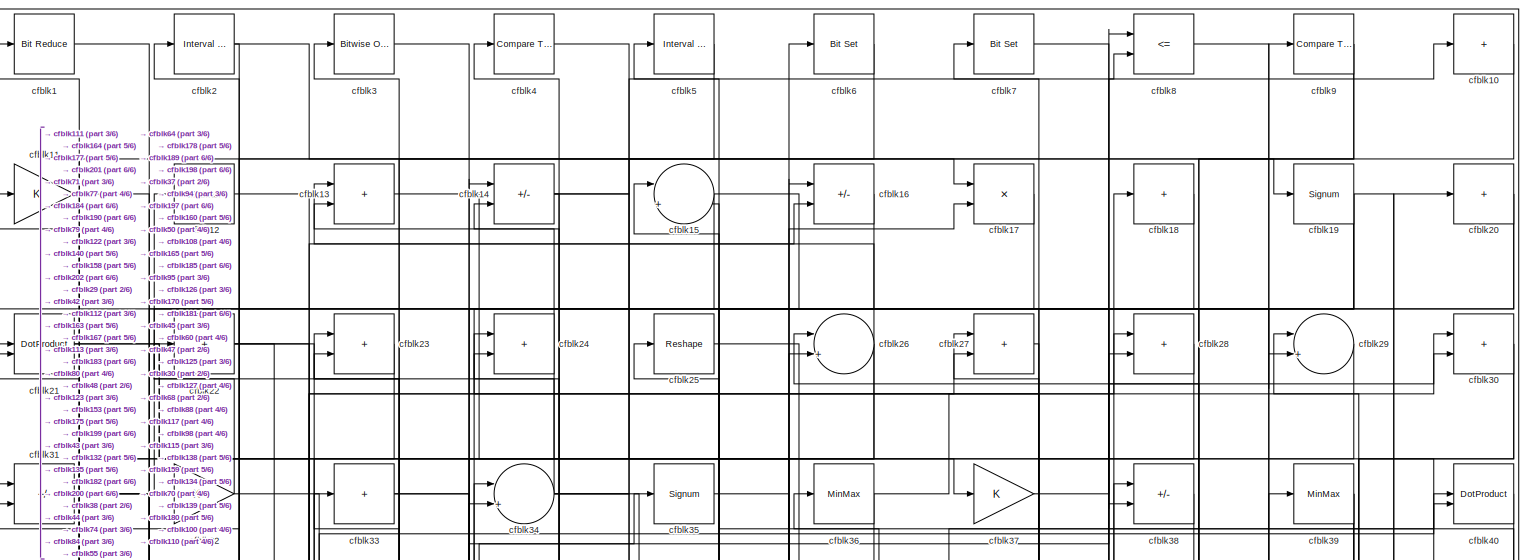
[diagram: root canvas - part 1/6, full width, top band]
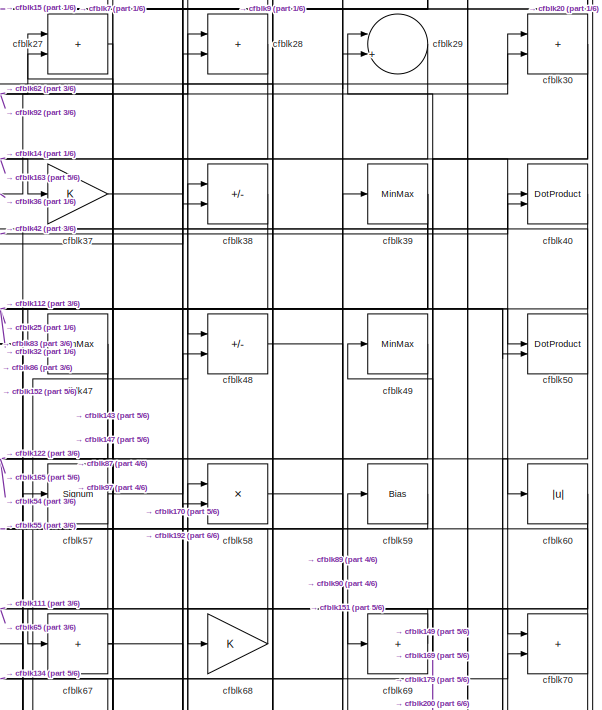
[diagram: root canvas - part 2/6, top right region]
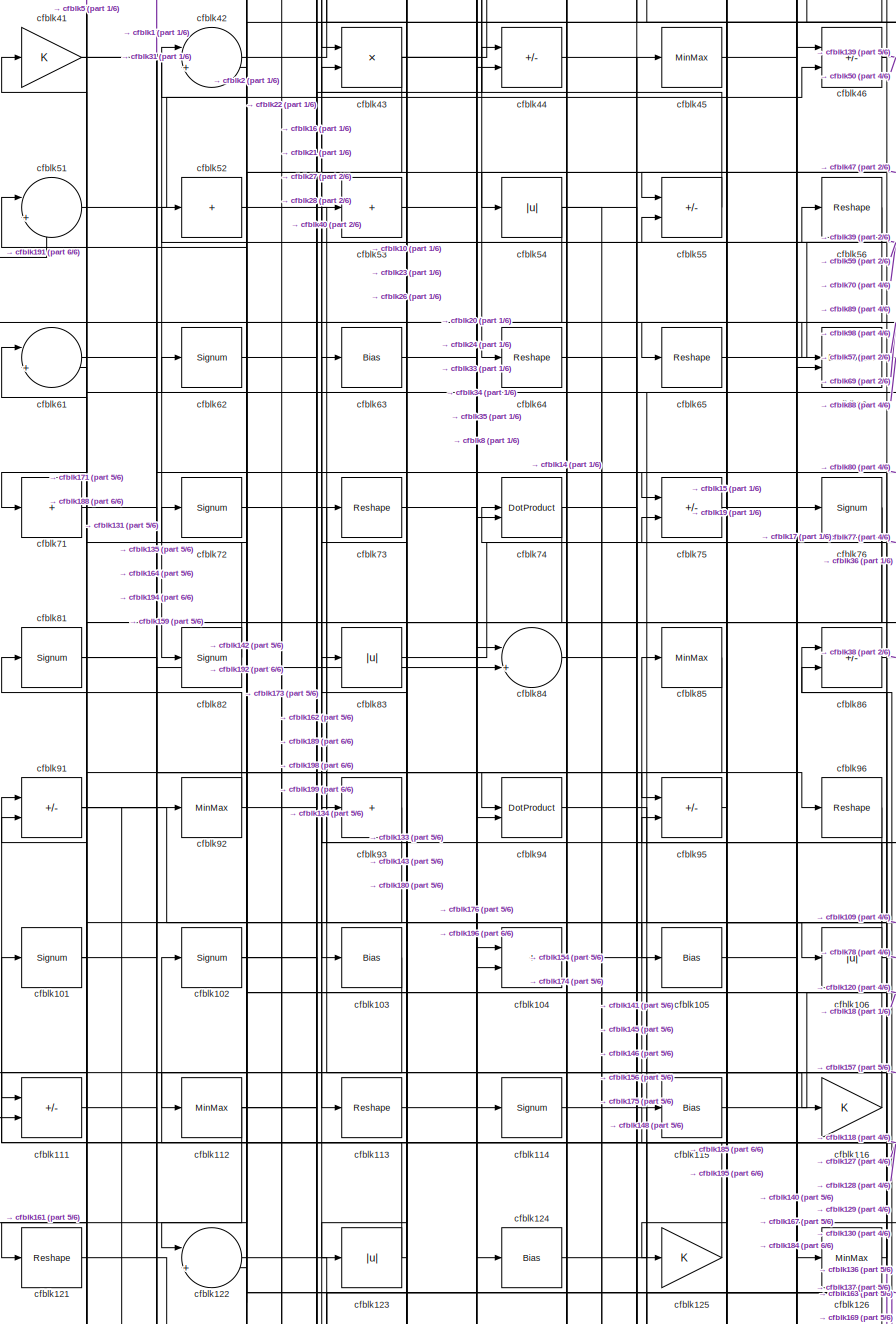
[diagram: root canvas - part 3/6, middle left region]
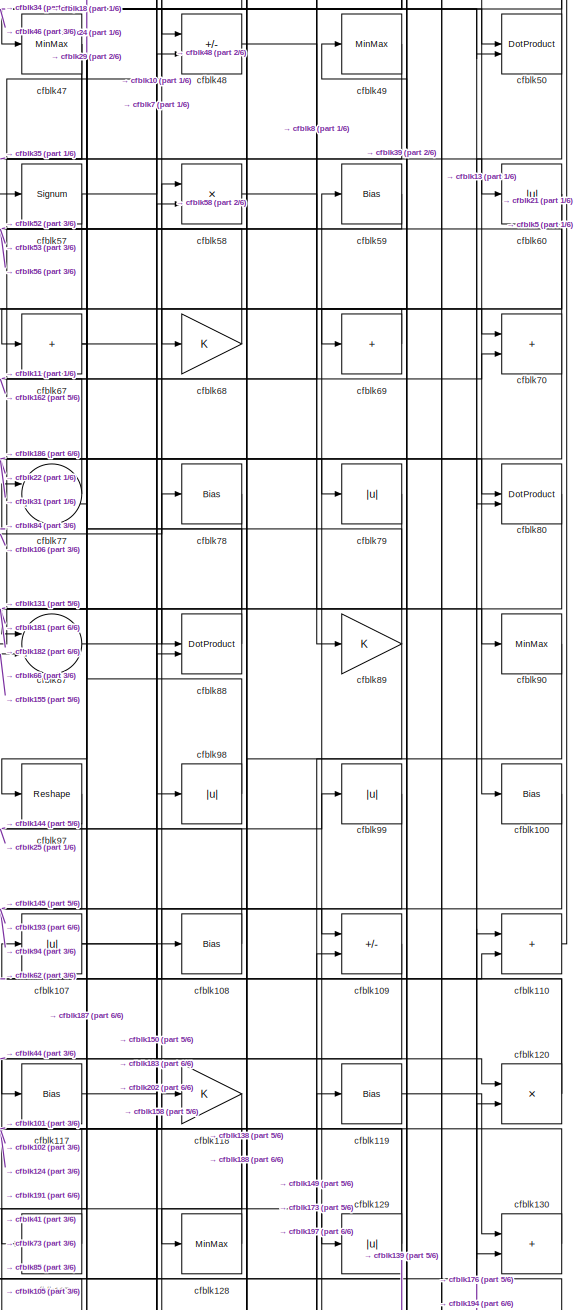
[diagram: root canvas - part 4/6, middle right region]
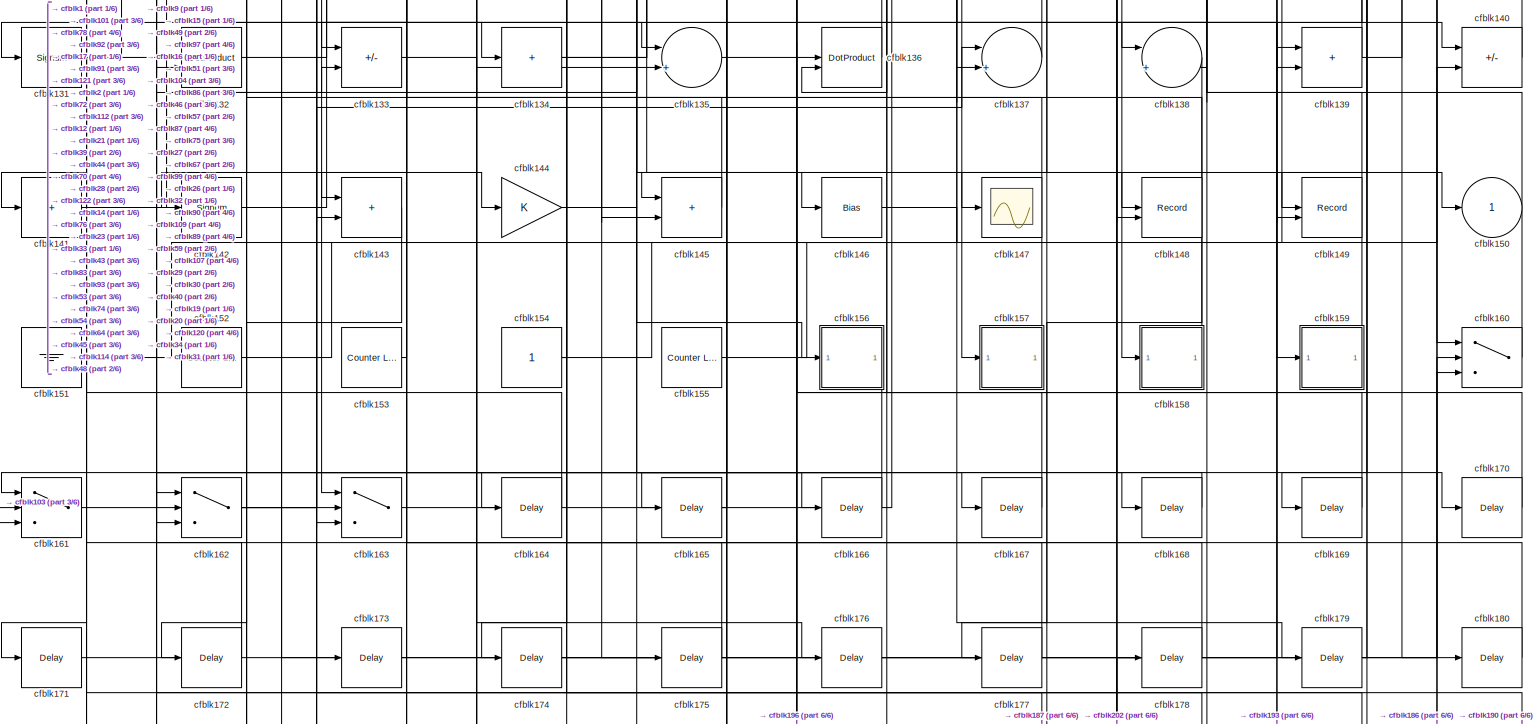
[diagram: root canvas - part 5/6, full width, bottom band]
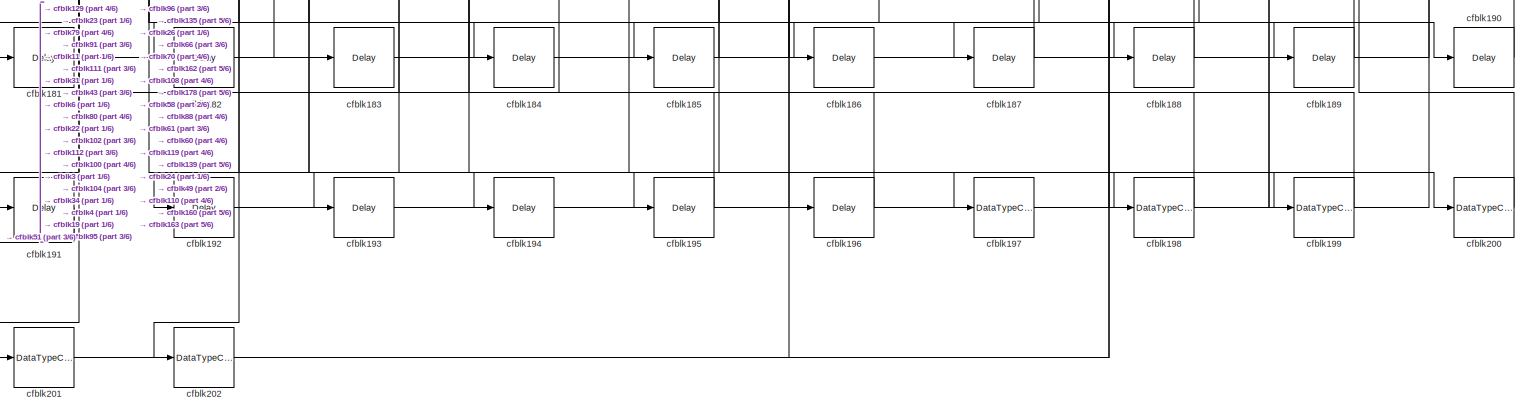
[diagram: root canvas - part 6/6, full width, bottom band]
MODEL slx_9de2fba7d742
KIND model
CONFIG AbsTol = auto
CONFIG EnableMultiTasking = off
CONFIG FixedStep = auto
CONFIG MaxStep = auto
CONFIG MinStep = auto
CONFIG RelTol = 1e-3
CONFIG SampleTimeConstraint = Unconstrained
CONFIG SolverName = VariableStepAuto
CONFIG StartTime = 0.0
CONFIG StopTime = 10.0
BLOCK [Reference] cfblk1  REF=hdlsllib/Logic and Bit
Operations/Bit Reduce
  SourceBlock = hdlsllib/Logic and Bit\nOperations/Bit Reduce
  SourceType = Bit Reduce
BLOCK [Sum] cfblk10
  IconShape = rectangular
  Inputs = +
BLOCK [Bias] cfblk100
  Bias = 0.0
  SaturateOnIntegerOverflow = off
BLOCK [Signum] cfblk101
BLOCK [Signum] cfblk102
BLOCK [Bias] cfblk103
  Bias = 0.0
  SaturateOnIntegerOverflow = off
BLOCK [Sum] cfblk104
  IconShape = rectangular
BLOCK [Bias] cfblk105
  Bias = 0.0
  SaturateOnIntegerOverflow = off
BLOCK [Abs] cfblk106
  SaturateOnIntegerOverflow = off
BLOCK [Abs] cfblk107
  SaturateOnIntegerOverflow = off
BLOCK [Bias] cfblk108
  Bias = 0.0
  SaturateOnIntegerOverflow = off
BLOCK [Sum] cfblk109
  IconShape = rectangular
  Inputs = +-
BLOCK [Gain] cfblk11
BLOCK [Sum] cfblk110
  IconShape = rectangular
BLOCK [Sum] cfblk111
  IconShape = rectangular
  Inputs = +-
BLOCK [MinMax] cfblk112
BLOCK [Reshape] cfblk113
BLOCK [Signum] cfblk114
BLOCK [Bias] cfblk115
  Bias = 0.0
  SaturateOnIntegerOverflow = off
BLOCK [Gain] cfblk116
BLOCK [Bias] cfblk117
  Bias = 0.0
  SaturateOnIntegerOverflow = off
BLOCK [Gain] cfblk118
BLOCK [Bias] cfblk119
  Bias = 0.0
  SaturateOnIntegerOverflow = off
BLOCK [MinMax] cfblk12
BLOCK [Product] cfblk120
  Inputs = */
  RndMeth = Zero
  SaturateOnIntegerOverflow = on
BLOCK [Reshape] cfblk121
BLOCK [Sum] cfblk122
  Inputs = |++
BLOCK [Abs] cfblk123
  SaturateOnIntegerOverflow = off
BLOCK [Bias] cfblk124
  Bias = 0.0
  SaturateOnIntegerOverflow = off
BLOCK [Gain] cfblk125
BLOCK [MinMax] cfblk126
BLOCK [Sum] cfblk127
  IconShape = rectangular
  Inputs = +
BLOCK [MinMax] cfblk128
BLOCK [Abs] cfblk129
  SaturateOnIntegerOverflow = off
BLOCK [Sum] cfblk13
  IconShape = rectangular
BLOCK [Sum] cfblk130
  IconShape = rectangular
BLOCK [Signum] cfblk131
BLOCK [DotProduct] cfblk132
  OutDataTypeStr = Inherit: Inherit via internal rule
BLOCK [Sum] cfblk133
  IconShape = rectangular
  Inputs = +-
BLOCK [Sum] cfblk134
  IconShape = rectangular
  Inputs = +
BLOCK [Sum] cfblk135
  Inputs = |++
BLOCK [DotProduct] cfblk136
  OutDataTypeStr = Inherit: Inherit via internal rule
BLOCK [Sum] cfblk137
  Inputs = |++
BLOCK [Sum] cfblk138
  Inputs = |++
BLOCK [Sum] cfblk139
  IconShape = rectangular
BLOCK [Sum] cfblk14
  IconShape = rectangular
  Inputs = +-
BLOCK [Sum] cfblk140
  IconShape = rectangular
  Inputs = +-
BLOCK [Sum] cfblk141
  IconShape = rectangular
  Inputs = +
BLOCK [Signum] cfblk142
BLOCK [Sum] cfblk143
  IconShape = rectangular
BLOCK [Gain] cfblk144
BLOCK [Sum] cfblk145
  IconShape = rectangular
BLOCK [Bias] cfblk146
  Bias = 0.0
  SaturateOnIntegerOverflow = off
BLOCK [Scope] cfblk147
  Floating = off
  NumInputPorts = 1
  ScopeSpecificationString = Simulink.scopes.TimeScopeBlockCfg('CurrentConfiguration', extmgr.ConfigurationSet(extmgr.Configuration('Core','General UI',true),extmgr.Configuration('Core','Source UI',true),extmgr.Configuration('Sources','WiredSimulink',true,'DataLoggingVariableName','ScopeData2','DataLoggingSaveFormat','Array','DataLoggingLimitDataPoints',true,'DataLoggingDecimation','1'),extmgr.Configuration('Visuals','Time Do...<+868ch>
BLOCK [Record] cfblk148
  CompatibilityTag = XY
  FileSettingsInternal = {"entries":[{"content":{"excelSettings":{"content":{},"type":"Streamout.ExcelSettings"}},"type":"Streamout.FileSettingStorage","uuid":""}],"packageUris":["http:\/\/schema.mathworks.com\/mf0\/streamout_blocks\/R2020a"],"version":"1.0"}
  Layout = [1 1]
  SignalsInternal = {"entries":[{"content":{"signals":[{"content":{"blockPath":[],"dimensions":[1],"domain":"","lineColor":"#a2142f","plots":[1],"port":1,"signalID":1157,"signalName":"XY Graph:1"},"type":"RecordBlkView.Signal","uuid":""},{"content":{"blockPath":[],"dimensions":[1],"domain":"","lineColor":"#139fff","plots":[1],"port":2,"signalID":1160,"signalName":"XY Graph:2"},"type":"RecordBlkView.Signal","uuid":""}...<+146ch>
  VisualizationBindings = {"xyplotplugin":{"info":[{"series":[{"bindingParametersList":[{"parameter":"X-Axis","signalID":1157,"signalName":"XY Graph:1"},{"parameter":"Y-Axis","signalID":1160,"signalName":"XY Graph:2"}],"seriesID":53532}],"subplotID":1}]}}
  st = -1
BLOCK [Record] cfblk149
  CompatibilityTag = XY
  FileSettingsInternal = {"entries":[{"content":{"excelSettings":{"content":{},"type":"Streamout.ExcelSettings"}},"type":"Streamout.FileSettingStorage","uuid":""}],"packageUris":["http:\/\/schema.mathworks.com\/mf0\/streamout_blocks\/R2020a"],"version":"1.0"}
  Layout = [1 1]
  SignalsInternal = {"entries":[{"content":{"signals":[{"content":{"blockPath":[],"dimensions":[1],"domain":"","lineColor":"#a2142f","plots":[1],"port":1,"signalID":1165,"signalName":"XY Graph:1"},"type":"RecordBlkView.Signal","uuid":""},{"content":{"blockPath":[],"dimensions":[1],"domain":"","lineColor":"#139fff","plots":[1],"port":2,"signalID":1168,"signalName":"XY Graph:2"},"type":"RecordBlkView.Signal","uuid":""}...<+146ch>
  VisualizationBindings = {"xyplotplugin":{"info":[{"series":[{"bindingParametersList":[{"parameter":"X-Axis","signalID":1165,"signalName":"XY Graph:1"},{"parameter":"Y-Axis","signalID":1168,"signalName":"XY Graph:2"}],"seriesID":10874}],"subplotID":1}]}}
  st = -1
BLOCK [Sum] cfblk15
  Inputs = |++
BLOCK [Outport] cfblk150
  VectorParamsAs1DForOutWhenUnconnected = off
BLOCK [Ground] cfblk151
BLOCK [Reference] cfblk152  REF=hdlsllib/Sources/Counter
Limited
  SourceBlock = hdlsllib/Sources/Counter\nLimited
  SourceType = Counter Limited
BLOCK [Reference] cfblk153  REF=hdlsllib/Sources/Counter
Limited
  SourceBlock = hdlsllib/Sources/Counter\nLimited
  SourceType = Counter Limited
BLOCK [Constant] cfblk154
  SampleTime = -1
BLOCK [Reference] cfblk155  REF=hdlsllib/Sources/Counter
Limited
  SourceBlock = hdlsllib/Sources/Counter\nLimited
  SourceType = Counter Limited
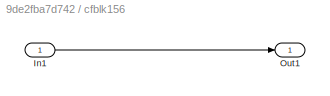
BLOCK [SubSystem] cfblk156
  LibrarySourceBlock = hdlsllib/Ports &\nSubsystems/Subsystem
BLOCK [Inport] cfblk156/In1
BLOCK [Outport] cfblk156/Out1
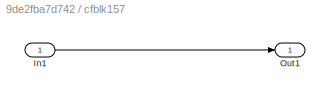
BLOCK [SubSystem] cfblk157
  LibrarySourceBlock = hdlsllib/Ports &\nSubsystems/Subsystem
BLOCK [Inport] cfblk157/In1
BLOCK [Outport] cfblk157/Out1
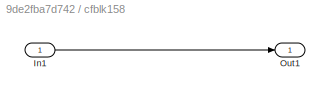
BLOCK [SubSystem] cfblk158
  LibrarySourceBlock = hdlsllib/Ports &\nSubsystems/Subsystem
BLOCK [Inport] cfblk158/In1
BLOCK [Outport] cfblk158/Out1
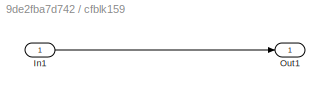
BLOCK [SubSystem] cfblk159
  LibrarySourceBlock = hdlsllib/Ports &\nSubsystems/Subsystem
BLOCK [Inport] cfblk159/In1
BLOCK [Outport] cfblk159/Out1
BLOCK [Sum] cfblk16
  IconShape = rectangular
  Inputs = +-
BLOCK [Switch] cfblk160
  InputSameDT = off
  SaturateOnIntegerOverflow = off
BLOCK [Switch] cfblk161
  InputSameDT = off
  SaturateOnIntegerOverflow = off
BLOCK [Switch] cfblk162
  InputSameDT = off
  SaturateOnIntegerOverflow = off
BLOCK [Switch] cfblk163
  InputSameDT = off
  SaturateOnIntegerOverflow = off
BLOCK [Delay] cfblk164
  InputPortMap = u0
  SampleTime = 1
BLOCK [Delay] cfblk165
  InputPortMap = u0
  SampleTime = 1
BLOCK [Delay] cfblk166
  InputPortMap = u0
  SampleTime = 1
BLOCK [Delay] cfblk167
  InputPortMap = u0
  SampleTime = 1
BLOCK [Delay] cfblk168
  InputPortMap = u0
  SampleTime = 1
BLOCK [Delay] cfblk169
  InputPortMap = u0
  SampleTime = 1
BLOCK [Product] cfblk17
  Inputs = */
  RndMeth = Zero
  SaturateOnIntegerOverflow = on
BLOCK [Delay] cfblk170
  InputPortMap = u0
  SampleTime = 1
BLOCK [Delay] cfblk171
  InputPortMap = u0
  SampleTime = 1
BLOCK [Delay] cfblk172
  InputPortMap = u0
  SampleTime = 1
BLOCK [Delay] cfblk173
  InputPortMap = u0
  SampleTime = 1
BLOCK [Delay] cfblk174
  InputPortMap = u0
  SampleTime = 1
BLOCK [Delay] cfblk175
  InputPortMap = u0
  SampleTime = 1
BLOCK [Delay] cfblk176
  InputPortMap = u0
  SampleTime = 1
BLOCK [Delay] cfblk177
  InputPortMap = u0
  SampleTime = 1
BLOCK [Delay] cfblk178
  InputPortMap = u0
  SampleTime = 1
BLOCK [Delay] cfblk179
  InputPortMap = u0
  SampleTime = 1
BLOCK [Sum] cfblk18
  IconShape = rectangular
  Inputs = +
BLOCK [Delay] cfblk180
  InputPortMap = u0
  SampleTime = 1
BLOCK [Delay] cfblk181
  InputPortMap = u0
  SampleTime = 1
BLOCK [Delay] cfblk182
  InputPortMap = u0
  SampleTime = 1
BLOCK [Delay] cfblk183
  InputPortMap = u0
  SampleTime = 1
BLOCK [Delay] cfblk184
  InputPortMap = u0
  SampleTime = 1
BLOCK [Delay] cfblk185
  InputPortMap = u0
  SampleTime = 1
BLOCK [Delay] cfblk186
  InputPortMap = u0
  SampleTime = 1
BLOCK [Delay] cfblk187
  InputPortMap = u0
  SampleTime = 1
BLOCK [Delay] cfblk188
  InputPortMap = u0
  SampleTime = 1
BLOCK [Delay] cfblk189
  InputPortMap = u0
  SampleTime = 1
BLOCK [Signum] cfblk19
BLOCK [Delay] cfblk190
  InputPortMap = u0
  SampleTime = 1
BLOCK [Delay] cfblk191
  InputPortMap = u0
  SampleTime = 1
BLOCK [Delay] cfblk192
  InputPortMap = u0
  SampleTime = 1
BLOCK [Delay] cfblk193
  InputPortMap = u0
  SampleTime = 1
BLOCK [Delay] cfblk194
  InputPortMap = u0
  SampleTime = 1
BLOCK [Delay] cfblk195
  InputPortMap = u0
  SampleTime = 1
BLOCK [Delay] cfblk196
  InputPortMap = u0
  SampleTime = 1
BLOCK [DataTypeConversion] cfblk197
  OutDataTypeStr = uint8
  RndMeth = Floor
  SaturateOnIntegerOverflow = off
BLOCK [DataTypeConversion] cfblk198
  OutDataTypeStr = uint8
  RndMeth = Floor
  SaturateOnIntegerOverflow = off
BLOCK [DataTypeConversion] cfblk199
  OutDataTypeStr = boolean
  RndMeth = Floor
  SaturateOnIntegerOverflow = off
BLOCK [Reference] cfblk2  REF=hdlsllib/Logic and Bit
Operations/Interval Test
  SourceBlock = hdlsllib/Logic and Bit\nOperations/Interval Test
  SourceType = Interval Test
BLOCK [Sum] cfblk20
  IconShape = rectangular
  Inputs = +
BLOCK [DataTypeConversion] cfblk200
  OutDataTypeStr = uint8
  RndMeth = Floor
  SaturateOnIntegerOverflow = off
BLOCK [DataTypeConversion] cfblk201
  OutDataTypeStr = boolean
  RndMeth = Floor
  SaturateOnIntegerOverflow = off
BLOCK [DataTypeConversion] cfblk202
  RndMeth = Floor
  SaturateOnIntegerOverflow = off
BLOCK [DotProduct] cfblk21
  OutDataTypeStr = Inherit: Inherit via internal rule
BLOCK [Sum] cfblk22
  IconShape = rectangular
  Inputs = +
BLOCK [Sum] cfblk23
  IconShape = rectangular
BLOCK [Sum] cfblk24
  IconShape = rectangular
BLOCK [Reshape] cfblk25
BLOCK [Sum] cfblk26
  Inputs = |++
BLOCK [Sum] cfblk27
  IconShape = rectangular
BLOCK [Sum] cfblk28
  IconShape = rectangular
BLOCK [Sum] cfblk29
  Inputs = |++
BLOCK [Reference] cfblk3  REF=simulink/Logic and Bit
Operations/Bitwise
Operator
  LibrarySourceBlock = hdlsllib/Logic and Bit\nOperations/Bitwise\nOperator
  SourceBlock = simulink/Logic and Bit\nOperations/Bitwise\nOperator
  SourceType = Bitwise Operator
BLOCK [Sum] cfblk30
  IconShape = rectangular
BLOCK [Sum] cfblk31
  IconShape = rectangular
  Inputs = +-
BLOCK [Gain] cfblk32
BLOCK [Sum] cfblk33
  IconShape = rectangular
  Inputs = +
BLOCK [Sum] cfblk34
  Inputs = |++
BLOCK [Signum] cfblk35
BLOCK [MinMax] cfblk36
BLOCK [Gain] cfblk37
BLOCK [Sum] cfblk38
  IconShape = rectangular
  Inputs = +-
BLOCK [MinMax] cfblk39
BLOCK [Reference] cfblk4  REF=hdlsllib/Logic and Bit
Operations/Compare
To Zero
  SourceBlock = hdlsllib/Logic and Bit\nOperations/Compare\nTo Zero
  SourceType = Compare To Zero
BLOCK [DotProduct] cfblk40
  OutDataTypeStr = Inherit: Inherit via internal rule
BLOCK [Gain] cfblk41
BLOCK [Sum] cfblk42
  Inputs = |++
BLOCK [Product] cfblk43
  Inputs = */
  RndMeth = Zero
  SaturateOnIntegerOverflow = on
BLOCK [Sum] cfblk44
  IconShape = rectangular
  Inputs = +-
BLOCK [MinMax] cfblk45
BLOCK [Sum] cfblk46
  IconShape = rectangular
  Inputs = +-
BLOCK [MinMax] cfblk47
BLOCK [Sum] cfblk48
  IconShape = rectangular
  Inputs = +-
BLOCK [MinMax] cfblk49
BLOCK [Reference] cfblk5  REF=hdlsllib/Logic and Bit
Operations/Interval Test
  SourceBlock = hdlsllib/Logic and Bit\nOperations/Interval Test
  SourceType = Interval Test
BLOCK [DotProduct] cfblk50
  OutDataTypeStr = Inherit: Inherit via internal rule
BLOCK [Sum] cfblk51
  Inputs = |++
BLOCK [Sum] cfblk52
  IconShape = rectangular
  Inputs = +
BLOCK [Sum] cfblk53
  IconShape = rectangular
  Inputs = +
BLOCK [Abs] cfblk54
  SaturateOnIntegerOverflow = off
BLOCK [Sum] cfblk55
  IconShape = rectangular
  Inputs = +-
BLOCK [Reshape] cfblk56
BLOCK [Signum] cfblk57
BLOCK [Product] cfblk58
  Inputs = */
  RndMeth = Zero
  SaturateOnIntegerOverflow = on
BLOCK [Bias] cfblk59
  Bias = 0.0
  SaturateOnIntegerOverflow = off
BLOCK [Reference] cfblk6  REF=simulink/Logic and Bit
Operations/Bit Set
  LibrarySourceBlock = hdlsllib/Logic and Bit\nOperations/Bit Set
  SourceBlock = simulink/Logic and Bit\nOperations/Bit Set
  SourceType = Bit Set
BLOCK [Abs] cfblk60
  SaturateOnIntegerOverflow = off
BLOCK [Sum] cfblk61
  Inputs = |++
BLOCK [Signum] cfblk62
BLOCK [Bias] cfblk63
  Bias = 0.0
  SaturateOnIntegerOverflow = off
BLOCK [Reshape] cfblk64
BLOCK [Reshape] cfblk65
BLOCK [DotProduct] cfblk66
  OutDataTypeStr = Inherit: Inherit via internal rule
BLOCK [Sum] cfblk67
  IconShape = rectangular
  Inputs = +
BLOCK [Gain] cfblk68
BLOCK [Sum] cfblk69
  IconShape = rectangular
  Inputs = +
BLOCK [Reference] cfblk7  REF=simulink/Logic and Bit
Operations/Bit Set
  LibrarySourceBlock = hdlsllib/Logic and Bit\nOperations/Bit Set
  SourceBlock = simulink/Logic and Bit\nOperations/Bit Set
  SourceType = Bit Set
BLOCK [Sum] cfblk70
  IconShape = rectangular
BLOCK [Sum] cfblk71
  IconShape = rectangular
  Inputs = +
BLOCK [Signum] cfblk72
BLOCK [Reshape] cfblk73
BLOCK [DotProduct] cfblk74
  OutDataTypeStr = Inherit: Inherit via internal rule
BLOCK [Sum] cfblk75
  IconShape = rectangular
  Inputs = +-
BLOCK [Signum] cfblk76
BLOCK [Sum] cfblk77
  Inputs = |++
BLOCK [Bias] cfblk78
  Bias = 0.0
  SaturateOnIntegerOverflow = off
BLOCK [Abs] cfblk79
  SaturateOnIntegerOverflow = off
BLOCK [RelationalOperator] cfblk8
  InputSameDT = off
  Operator = <=
  OutDataTypeStr = boolean
BLOCK [DotProduct] cfblk80
  OutDataTypeStr = Inherit: Inherit via internal rule
BLOCK [Signum] cfblk81
BLOCK [Signum] cfblk82
BLOCK [Abs] cfblk83
  SaturateOnIntegerOverflow = off
BLOCK [Sum] cfblk84
  Inputs = |++
BLOCK [MinMax] cfblk85
BLOCK [Sum] cfblk86
  IconShape = rectangular
  Inputs = +-
BLOCK [Sum] cfblk87
  Inputs = |++
BLOCK [DotProduct] cfblk88
  OutDataTypeStr = Inherit: Inherit via internal rule
BLOCK [Gain] cfblk89
BLOCK [Reference] cfblk9  REF=hdlsllib/Logic and Bit
Operations/Compare
To Constant
  SourceBlock = hdlsllib/Logic and Bit\nOperations/Compare\nTo Constant
  SourceType = Compare To Constant
BLOCK [MinMax] cfblk90
BLOCK [Sum] cfblk91
  IconShape = rectangular
  Inputs = +-
BLOCK [MinMax] cfblk92
BLOCK [Sum] cfblk93
  IconShape = rectangular
  Inputs = +
BLOCK [DotProduct] cfblk94
  OutDataTypeStr = Inherit: Inherit via internal rule
BLOCK [Sum] cfblk95
  IconShape = rectangular
  Inputs = +-
BLOCK [Reshape] cfblk96
BLOCK [Reshape] cfblk97
BLOCK [Abs] cfblk98
  SaturateOnIntegerOverflow = off
BLOCK [Abs] cfblk99
  SaturateOnIntegerOverflow = off
LINE cfblk100:1 -> cfblk193:1
NET cfblk101:1 -> cfblk141:1, cfblk84:2
NET cfblk102:1 -> cfblk189:1, cfblk198:1
LINE cfblk103:1 -> cfblk161:2
LINE cfblk104:1 -> cfblk136:2
LINE cfblk105:1 -> cfblk129:1
NET cfblk106:1 -> cfblk63:1, cfblk78:1
NET cfblk107:1 -> cfblk110:2, cfblk150:1
LINE cfblk108:1 -> cfblk25:1
LINE cfblk109:1 -> cfblk117:1
LINE cfblk10:1 -> cfblk123:1
LINE cfblk110:1 -> cfblk21:1
LINE cfblk111:1 -> cfblk194:1
NET cfblk112:1 -> cfblk161:3, cfblk16:2, cfblk199:1
LINE cfblk113:1 -> cfblk116:1
LINE cfblk114:1 -> cfblk148:1
LINE cfblk115:1 -> cfblk18:1
LINE cfblk116:1 -> cfblk42:1
LINE cfblk117:1 -> cfblk10:1
LINE cfblk118:1 -> cfblk128:1
LINE cfblk119:1 -> cfblk130:1
LINE cfblk11:1 -> cfblk190:1
NET cfblk120:1 -> cfblk62:1, cfblk77:2
LINE cfblk121:1 -> cfblk159:1
LINE cfblk122:1 -> cfblk134:1
NET cfblk123:1 -> cfblk23:1, cfblk72:1
LINE cfblk124:1 -> cfblk118:1
LINE cfblk125:1 -> cfblk91:1
LINE cfblk126:1 -> cfblk36:1
LINE cfblk127:1 -> cfblk85:1
LINE cfblk128:1 -> cfblk41:1
NET cfblk129:1 -> cfblk102:1, cfblk191:1, cfblk73:1
LINE cfblk12:1 -> cfblk167:1
LINE cfblk130:1 -> cfblk101:1
NET cfblk131:1 -> cfblk144:1, cfblk92:1
LINE cfblk132:1 -> cfblk14:1
LINE cfblk133:1 -> cfblk166:1
NET cfblk134:1 -> cfblk48:2, cfblk9:1
LINE cfblk135:1 -> cfblk196:1
LINE cfblk136:1 -> cfblk51:1
LINE cfblk137:1 -> cfblk75:2
LINE cfblk138:1 -> cfblk177:1
NET cfblk139:1 -> cfblk107:1, cfblk20:1
LINE cfblk13:1 -> cfblk100:1
LINE cfblk140:1 -> cfblk31:1
LINE cfblk141:1 -> cfblk45:1
LINE cfblk142:1 -> cfblk76:1
LINE cfblk143:1 -> cfblk172:1
NET cfblk144:1 -> cfblk168:1, cfblk99:1
LINE cfblk145:1 -> cfblk93:1
LINE cfblk146:1 -> cfblk179:1
NET cfblk14:1 -> cfblk19:1, cfblk37:1, cfblk94:1
LINE cfblk151:1 -> cfblk59:1
LINE cfblk152:1 -> cfblk57:1
LINE cfblk153:1 -> cfblk33:1
NET cfblk154:1 -> cfblk140:2, cfblk74:1
LINE cfblk155:1 -> cfblk87:2
LINE cfblk156/In1:1 -> cfblk156/Out1:1
LINE cfblk156:1 -> cfblk162:3
LINE cfblk157/In1:1 -> cfblk157/Out1:1
LINE cfblk157:1 -> cfblk83:1
LINE cfblk158/In1:1 -> cfblk158/Out1:1
LINE cfblk158:1 -> cfblk2:1
LINE cfblk159/In1:1 -> cfblk159/Out1:1
LINE cfblk159:1 -> cfblk32:1
NET cfblk15:1 -> cfblk122:2, cfblk29:2
LINE cfblk160:1 -> cfblk26:1
LINE cfblk161:1 -> cfblk133:2
NET cfblk162:1 -> cfblk137:1, cfblk44:1, cfblk70:2
LINE cfblk163:1 -> cfblk86:1
LINE cfblk164:1 -> cfblk21:2
LINE cfblk165:1 -> cfblk15:2
LINE cfblk166:1 -> cfblk161:1
LINE cfblk167:1 -> cfblk46:1
LINE cfblk168:1 -> cfblk162:2
LINE cfblk169:1 -> cfblk86:2
LINE cfblk16:1 -> cfblk55:1
LINE cfblk170:1 -> cfblk16:1
LINE cfblk171:1 -> cfblk136:1
LINE cfblk172:1 -> cfblk132:1
LINE cfblk173:1 -> cfblk109:2
LINE cfblk174:1 -> cfblk160:2
LINE cfblk175:1 -> cfblk23:2
LINE cfblk176:1 -> cfblk120:2
LINE cfblk177:1 -> cfblk1:1
LINE cfblk178:1 -> cfblk14:2
LINE cfblk179:1 -> cfblk29:1
LINE cfblk17:1 -> cfblk132:2
LINE cfblk180:1 -> cfblk43:2
LINE cfblk181:1 -> cfblk26:2
LINE cfblk182:1 -> cfblk34:2
LINE cfblk183:1 -> cfblk88:2
LINE cfblk184:1 -> cfblk66:2
LINE cfblk185:1 -> cfblk95:2
LINE cfblk186:1 -> cfblk160:3
LINE cfblk187:1 -> cfblk162:1
LINE cfblk188:1 -> cfblk61:2
LINE cfblk189:1 -> cfblk24:2
LINE cfblk18:1 -> cfblk127:1
LINE cfblk190:1 -> cfblk163:2
LINE cfblk191:1 -> cfblk51:2
LINE cfblk192:1 -> cfblk58:2
LINE cfblk193:1 -> cfblk139:1
LINE cfblk194:1 -> cfblk110:1
LINE cfblk195:1 -> cfblk91:2
LINE cfblk196:1 -> cfblk104:1
LINE cfblk197:1 -> cfblk119:1
LINE cfblk198:1 -> cfblk4:1
LINE cfblk199:1 -> cfblk3:1
NET cfblk19:1 -> cfblk180:1, cfblk185:1, cfblk31:2, cfblk64:1
LINE cfblk1:1 -> cfblk95:1
LINE cfblk200:1 -> cfblk49:1
LINE cfblk201:1 -> cfblk6:1
NET cfblk202:1 -> cfblk108:1, cfblk178:1
NET cfblk20:1 -> cfblk38:2, cfblk44:2
NET cfblk21:1 -> cfblk126:1, cfblk163:3
NET cfblk22:1 -> cfblk113:1, cfblk183:1, cfblk80:1
LINE cfblk23:1 -> cfblk201:1
NET cfblk24:1 -> cfblk13:1, cfblk74:2
LINE cfblk25:1 -> cfblk47:1
NET cfblk26:1 -> cfblk111:1, cfblk13:2, cfblk43:1
LINE cfblk27:1 -> cfblk147:1
LINE cfblk28:1 -> cfblk163:1
LINE cfblk29:1 -> cfblk87:1
NET cfblk2:1 -> cfblk17:1, cfblk42:2
NET cfblk30:1 -> cfblk169:1, cfblk69:1
NET cfblk31:1 -> cfblk115:1, cfblk184:1, cfblk79:1
NET cfblk32:1 -> cfblk22:1, cfblk48:1
NET cfblk33:1 -> cfblk135:2, cfblk84:1
NET cfblk34:1 -> cfblk12:1, cfblk160:1, cfblk50:2, cfblk8:2
LINE cfblk35:1 -> cfblk60:1
NET cfblk36:1 -> cfblk125:1, cfblk30:2
LINE cfblk37:1 -> cfblk30:1
LINE cfblk38:1 -> cfblk112:1
NET cfblk39:1 -> cfblk143:2, cfblk67:1, cfblk97:1
LINE cfblk3:1 -> cfblk200:1
LINE cfblk40:1 -> cfblk149:1
NET cfblk41:1 -> cfblk80:2, cfblk82:1
LINE cfblk42:1 -> cfblk40:1
NET cfblk43:1 -> cfblk105:1, cfblk192:1, cfblk35:1, cfblk8:1
LINE cfblk44:1 -> cfblk120:1
LINE cfblk45:1 -> cfblk17:2
NET cfblk46:1 -> cfblk137:2, cfblk139:2, cfblk50:1
NET cfblk47:1 -> cfblk122:1, cfblk54:1
LINE cfblk48:1 -> cfblk90:1
LINE cfblk49:1 -> cfblk165:1
LINE cfblk4:1 -> cfblk197:1
NET cfblk50:1 -> cfblk130:2, cfblk5:1
LINE cfblk51:1 -> cfblk46:2
LINE cfblk52:1 -> cfblk106:1
LINE cfblk53:1 -> cfblk176:1
NET cfblk54:1 -> cfblk142:1, cfblk148:2, cfblk175:1
LINE cfblk55:1 -> cfblk34:1
LINE cfblk56:1 -> cfblk104:2
NET cfblk57:1 -> cfblk111:2, cfblk28:2
LINE cfblk58:1 -> cfblk89:1
LINE cfblk59:1 -> cfblk55:2
LINE cfblk5:1 -> cfblk71:1
NET cfblk60:1 -> cfblk187:1, cfblk188:1
LINE cfblk61:1 -> cfblk66:1
LINE cfblk62:1 -> cfblk28:1
LINE cfblk63:1 -> cfblk114:1
NET cfblk64:1 -> cfblk145:2, cfblk146:1
LINE cfblk65:1 -> cfblk39:1
LINE cfblk66:1 -> cfblk88:1
NET cfblk67:1 -> cfblk170:1, cfblk27:1
LINE cfblk68:1 -> cfblk7:1
LINE cfblk69:1 -> cfblk65:1
LINE cfblk6:1 -> cfblk202:1
NET cfblk70:1 -> cfblk186:1, cfblk52:1
LINE cfblk71:1 -> cfblk96:1
NET cfblk72:1 -> cfblk157:1, cfblk173:1
LINE cfblk73:1 -> cfblk75:1
NET cfblk74:1 -> cfblk143:1, cfblk156:1
LINE cfblk75:1 -> cfblk140:1
NET cfblk76:1 -> cfblk133:1, cfblk174:1
LINE cfblk77:1 -> cfblk11:1
LINE cfblk78:1 -> cfblk131:1
LINE cfblk79:1 -> cfblk181:1
LINE cfblk7:1 -> cfblk98:1
LINE cfblk80:1 -> cfblk182:1
NET cfblk81:1 -> cfblk103:1, cfblk94:2
LINE cfblk82:1 -> cfblk61:1
LINE cfblk83:1 -> cfblk40:2
LINE cfblk84:1 -> cfblk77:1
LINE cfblk85:1 -> cfblk121:1
LINE cfblk86:1 -> cfblk38:1
LINE cfblk87:1 -> cfblk58:1
LINE cfblk88:1 -> cfblk24:1
NET cfblk89:1 -> cfblk149:2, cfblk56:1
LINE cfblk8:1 -> cfblk70:1
LINE cfblk90:1 -> cfblk138:1
NET cfblk91:1 -> cfblk124:1, cfblk135:1, cfblk164:1
NET cfblk92:1 -> cfblk27:2, cfblk81:1
LINE cfblk93:1 -> cfblk171:1
LINE cfblk94:1 -> cfblk109:1
LINE cfblk95:1 -> cfblk15:1
LINE cfblk96:1 -> cfblk195:1
LINE cfblk97:1 -> cfblk145:1
LINE cfblk98:1 -> cfblk53:1
LINE cfblk99:1 -> cfblk158:1
NET cfblk9:1 -> cfblk138:2, cfblk68:1
note: NET lines group one-source signal fan-out (src -> all destinations, sorted); 1:1 wires keep LINE
